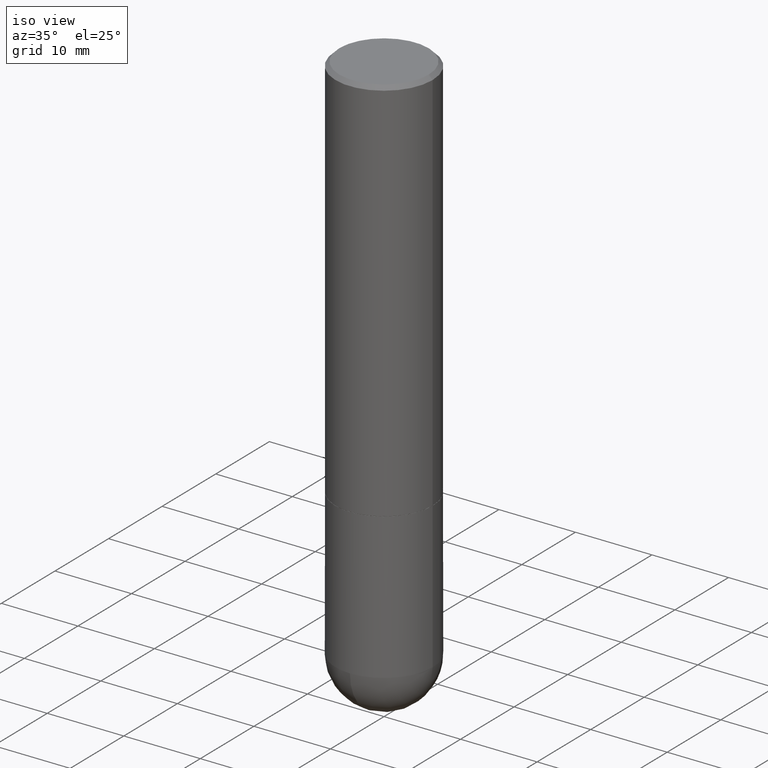
[diagram: clean part render]
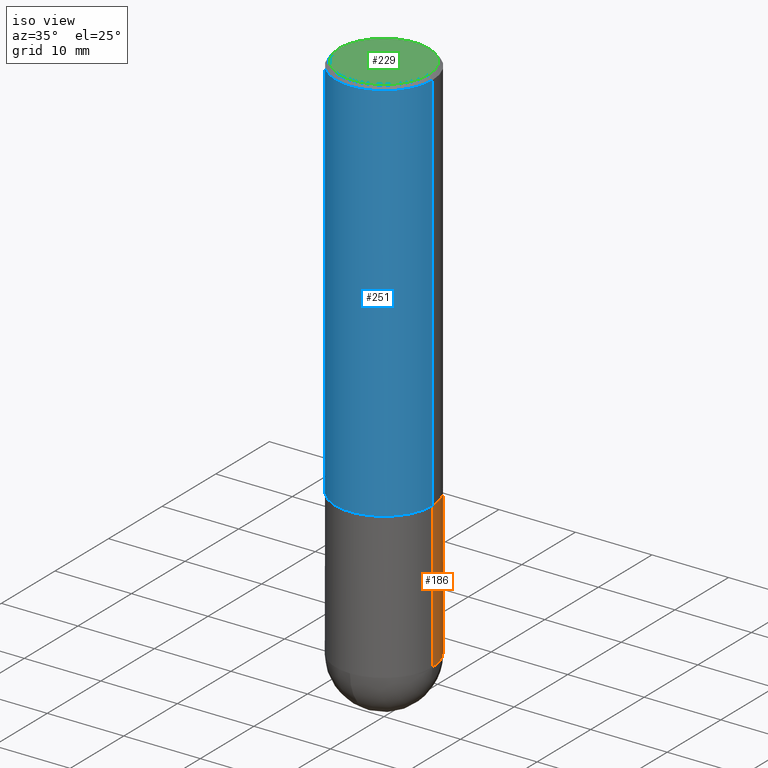
[diagram: same view with three faces highlighted in distinct colors, each labeled with its STEP entity id]
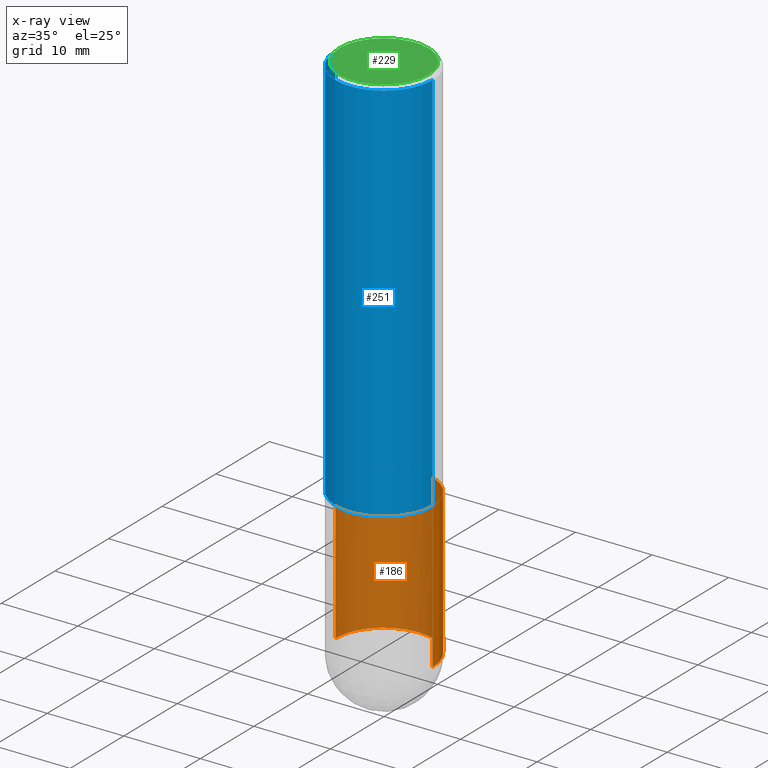
[diagram: x-ray of the same camera — body ghosted, the three highlighted faces saturated]
A machine part, iso view with three faces highlighted in distinct colors.
The next image is the same camera in x-ray (body ghosted, the three faces saturated) — at least one of them is partly hidden behind the body in this view.
Their STEP definitions:

[orange] entity #186 — the highlighted cylindrical surface (partial cylindrical patch) has radius 6.35 mm, axis along (-0, 0, 1).
#8 = CARTESIAN_POINT ( 'NONE',  ( -0.2500000000000000000, -6.515911340352222020E-15, -2.750000000000000000 ) ) ;
#17 = VERTEX_POINT ( 'NONE', #228 ) ;
#25 = CARTESIAN_POINT ( 'NONE',  ( 0.2500000000000000000, -8.728703347107858632E-15, -2.000000000000000444 ) ) ;
#27 = DIRECTION ( 'NONE',  ( -2.445468806185136877E-29, 3.491481338843145188E-15, 1.000000000000000000 ) ) ;
#36 = DIRECTION ( 'NONE',  ( 1.000000000000000000, -6.982962677686266711E-15, 4.876176775795935793E-29 ) ) ;
#42 = CIRCLE ( 'NONE', #253, 0.2500000000000000000 ) ;
#51 = VERTEX_POINT ( 'NONE', #159 ) ;
#56 = VERTEX_POINT ( 'NONE', #25 ) ;
#61 = VECTOR ( 'NONE', #196, 39.37007874015748143 ) ;
#76 = FACE_OUTER_BOUND ( 'NONE', #86, .T. ) ;
#86 = EDGE_LOOP ( 'NONE', ( #237, #243, #345, #335, #400 ) ) ;
#88 = CIRCLE ( 'NONE', #402, 0.2500000000000000000 ) ;
#106 = CARTESIAN_POINT ( 'NONE',  ( 0.000000000000000000, 0.000000000000000000, 0.000000000000000000 ) ) ;
#125 = EDGE_CURVE ( 'NONE', #362, #56, #127, .T. ) ;
#127 = LINE ( 'NONE', #312, #198 ) ;
#136 = EDGE_CURVE ( 'NONE', #407, #51, #154, .T. ) ;
#145 = CYLINDRICAL_SURFACE ( 'NONE', #327, 0.2500000000000000000 ) ;
#154 = LINE ( 'NONE', #235, #61 ) ;
#158 = CARTESIAN_POINT ( 'NONE',  ( 4.890937612370273754E-29, -6.982962677686291954E-15, -2.000000000000000444 ) ) ;
#159 = CARTESIAN_POINT ( 'NONE',  ( -0.2500000000000000000, -6.515911340352220442E-15, -2.000000000000000444 ) ) ;
#175 = AXIS2_PLACEMENT_3D ( 'NONE', #257, #320, #200 ) ;
#186 = ADVANCED_FACE ( 'NONE', ( #76 ), #145, .T. ) ;
#196 = DIRECTION ( 'NONE',  ( -2.445468806185136877E-29, 3.491481338843145188E-15, 1.000000000000000000 ) ) ;
#198 = VECTOR ( 'NONE', #27, 39.37007874015748143 ) ;
#200 = DIRECTION ( 'NONE',  ( 1.000000000000000000, -6.982962677686262766E-15, 0.000000000000000000 ) ) ;
#228 = CARTESIAN_POINT ( 'NONE',  ( 1.745740669421632745E-15, 0.2499999999999902300, -2.750000000000000888 ) ) ;
#230 = DIRECTION ( 'NONE',  ( 1.000000000000000000, -6.982962677686262766E-15, 0.000000000000000000 ) ) ;
#235 = CARTESIAN_POINT ( 'NONE',  ( -0.2500000000000000000, 1.776356839400250465E-15, -1.229733772563726445E-29 ) ) ;
#237 = ORIENTED_EDGE ( 'NONE', *, *, #319, .T. ) ;
#243 = ORIENTED_EDGE ( 'NONE', *, *, #136, .T. ) ;
#252 = DIRECTION ( 'NONE',  ( -2.445468806185136597E-29, 3.491481338843145583E-15, 1.000000000000000000 ) ) ;
#253 = AXIS2_PLACEMENT_3D ( 'NONE', #381, #315, #230 ) ;
#257 = CARTESIAN_POINT ( 'NONE',  ( 6.725039217009124520E-29, -9.601573681818649859E-15, -2.750000000000000000 ) ) ;
#272 = EDGE_CURVE ( 'NONE', #362, #17, #303, .T. ) ;
#293 = CARTESIAN_POINT ( 'NONE',  ( 0.2500000000000000000, -1.003800884917403995E-14, -2.750000000000000000 ) ) ;
#303 = CIRCLE ( 'NONE', #175, 0.2500000000000000000 ) ;
#306 = EDGE_CURVE ( 'NONE', #56, #51, #88, .T. ) ;
#312 = CARTESIAN_POINT ( 'NONE',  ( 0.2500000000000000000, -1.745740669421566678E-15, 1.219044193948983948E-29 ) ) ;
#315 = DIRECTION ( 'NONE',  ( -2.445468806185136597E-29, 3.491481338843145583E-15, 1.000000000000000000 ) ) ;
#318 = DIRECTION ( 'NONE',  ( -2.445468806185136597E-29, 3.491481338843145583E-15, 1.000000000000000000 ) ) ;
#319 = EDGE_CURVE ( 'NONE', #17, #407, #42, .T. ) ;
#320 = DIRECTION ( 'NONE',  ( -2.445468806185136597E-29, 3.491481338843145583E-15, 1.000000000000000000 ) ) ;
#327 = AXIS2_PLACEMENT_3D ( 'NONE', #106, #318, #36 ) ;
#335 = ORIENTED_EDGE ( 'NONE', *, *, #125, .F. ) ;
#345 = ORIENTED_EDGE ( 'NONE', *, *, #306, .F. ) ;
#362 = VERTEX_POINT ( 'NONE', #293 ) ;
#381 = CARTESIAN_POINT ( 'NONE',  ( 6.725039217009124520E-29, -9.601573681818649859E-15, -2.750000000000000000 ) ) ;
#400 = ORIENTED_EDGE ( 'NONE', *, *, #272, .T. ) ;
#402 = AXIS2_PLACEMENT_3D ( 'NONE', #158, #252, #411 ) ;
#407 = VERTEX_POINT ( 'NONE', #8 ) ;
#411 = DIRECTION ( 'NONE',  ( 1.000000000000000000, -6.982962677686266711E-15, 0.000000000000000000 ) ) ;

[blue] entity #251 — the highlighted cylindrical surface (partial cylindrical patch) has radius 6.35 mm, axis along (-0, 0, 1).
#4 = CARTESIAN_POINT ( 'NONE',  ( -0.2500000000000002220, -1.748293572161901516E-15, -1.999000000000000110 ) ) ;
#6 = CARTESIAN_POINT ( 'NONE',  ( 0.2500000000000001110, -1.745740669421567664E-15, 1.219044193948984649E-29 ) ) ;
#18 = CARTESIAN_POINT ( 'NONE',  ( 0.2500000000000002776, -8.725211865769017202E-15, -1.999000000000000110 ) ) ;
#44 = AXIS2_PLACEMENT_3D ( 'NONE', #72, #197, #164 ) ;
#47 = CARTESIAN_POINT ( 'NONE',  ( -0.2500000000000001110, 1.776356839400251254E-15, -1.229733772563727146E-29 ) ) ;
#53 = CARTESIAN_POINT ( 'NONE',  ( 0.2500000000000000000, -1.784954126219746189E-15, -0.02000000000000005593 ) ) ;
#72 = CARTESIAN_POINT ( 'NONE',  ( 4.890937612370287172E-31, -6.982962677686310098E-17, -0.02000000000000005593 ) ) ;
#73 = AXIS2_PLACEMENT_3D ( 'NONE', #212, #171, #358 ) ;
#108 = CARTESIAN_POINT ( 'NONE',  ( 0.000000000000000000, 0.000000000000000000, 0.000000000000000000 ) ) ;
#130 = LINE ( 'NONE', #6, #162 ) ;
#135 = DIRECTION ( 'NONE',  ( -2.445468806185136597E-29, 3.491481338843145583E-15, 1.000000000000000000 ) ) ;
#140 = VERTEX_POINT ( 'NONE', #262 ) ;
#143 = VERTEX_POINT ( 'NONE', #18 ) ;
#160 = EDGE_CURVE ( 'NONE', #341, #140, #390, .T. ) ;
#162 = VECTOR ( 'NONE', #256, 39.37007874015748143 ) ;
#164 = DIRECTION ( 'NONE',  ( 1.000000000000000000, -6.982962677686266711E-15, 0.000000000000000000 ) ) ;
#167 = CIRCLE ( 'NONE', #73, 0.2500000000000002776 ) ;
#169 = DIRECTION ( 'NONE',  ( 1.000000000000000000, -6.982962677686267499E-15, 4.876176775795936353E-29 ) ) ;
#171 = DIRECTION ( 'NONE',  ( -2.445468806185136597E-29, 3.491481338843145583E-15, 1.000000000000000000 ) ) ;
#173 = ORIENTED_EDGE ( 'NONE', *, *, #342, .T. ) ;
#179 = EDGE_LOOP ( 'NONE', ( #309, #217, #173, #401 ) ) ;
#191 = VECTOR ( 'NONE', #209, 39.37007874015748143 ) ;
#197 = DIRECTION ( 'NONE',  ( -2.445468806185136597E-29, 3.491481338843145583E-15, 1.000000000000000000 ) ) ;
#201 = EDGE_CURVE ( 'NONE', #341, #143, #167, .T. ) ;
#206 = FACE_OUTER_BOUND ( 'NONE', #179, .T. ) ;
#209 = DIRECTION ( 'NONE',  ( -2.445468806185136877E-29, 3.491481338843145188E-15, 1.000000000000000000 ) ) ;
#211 = VERTEX_POINT ( 'NONE', #53 ) ;
#212 = CARTESIAN_POINT ( 'NONE',  ( 4.888492143564088712E-29, -6.979471196347448158E-15, -1.999000000000000110 ) ) ;
#217 = ORIENTED_EDGE ( 'NONE', *, *, #201, .T. ) ;
#251 = ADVANCED_FACE ( 'NONE', ( #206 ), #330, .T. ) ;
#256 = DIRECTION ( 'NONE',  ( -2.445468806185136877E-29, 3.491481338843145188E-15, 1.000000000000000000 ) ) ;
#262 = CARTESIAN_POINT ( 'NONE',  ( -0.2500000000000000000, 1.675911042644703577E-15, -0.02000000000000005593 ) ) ;
#267 = CIRCLE ( 'NONE', #44, 0.2500000000000000000 ) ;
#309 = ORIENTED_EDGE ( 'NONE', *, *, #160, .F. ) ;
#330 = CYLINDRICAL_SURFACE ( 'NONE', #371, 0.2500000000000001110 ) ;
#341 = VERTEX_POINT ( 'NONE', #4 ) ;
#342 = EDGE_CURVE ( 'NONE', #143, #211, #130, .T. ) ;
#354 = EDGE_CURVE ( 'NONE', #140, #211, #267, .T. ) ;
#358 = DIRECTION ( 'NONE',  ( 1.000000000000000000, -6.982962677686266711E-15, 0.000000000000000000 ) ) ;
#371 = AXIS2_PLACEMENT_3D ( 'NONE', #108, #135, #169 ) ;
#390 = LINE ( 'NONE', #47, #191 ) ;
#401 = ORIENTED_EDGE ( 'NONE', *, *, #354, .F. ) ;

[green] entity #229 — the highlighted planar face has unit normal (0, -0, -1).
#9 = CIRCLE ( 'NONE', #295, 0.2300000000000001488 ) ;
#14 = PLANE ( 'NONE',  #284 ) ;
#50 = CARTESIAN_POINT ( 'NONE',  ( 3.340324525872703422E-45, -4.769098145217431040E-31, -1.365923996832131609E-16 ) ) ;
#62 = VERTEX_POINT ( 'NONE', #370 ) ;
#78 = DIRECTION ( 'NONE',  ( -1.000000000000000000, 6.982962677686265922E-15, -4.876176775795935793E-29 ) ) ;
#85 = ORIENTED_EDGE ( 'NONE', *, *, #263, .T. ) ;
#87 = VERTEX_POINT ( 'NONE', #157 ) ;
#100 = DIRECTION ( 'NONE',  ( -2.445468806185136597E-29, 3.491481338843145583E-15, 1.000000000000000000 ) ) ;
#157 = CARTESIAN_POINT ( 'NONE',  ( 0.2300000000000001488, -1.681434332853599997E-15, -1.365923996832016731E-16 ) ) ;
#168 = AXIS2_PLACEMENT_3D ( 'NONE', #384, #100, #232 ) ;
#172 = DIRECTION ( 'NONE',  ( 1.000000000000000000, -6.982962677686265922E-15, 4.879110437680772635E-29 ) ) ;
#192 = ORIENTED_EDGE ( 'NONE', *, *, #352, .T. ) ;
#221 = CIRCLE ( 'NONE', #168, 0.2300000000000001488 ) ;
#229 = ADVANCED_FACE ( 'NONE', ( #292 ), #14, .F. ) ;
#232 = DIRECTION ( 'NONE',  ( 1.000000000000000000, -6.982962677686265922E-15, 4.879110437680772635E-29 ) ) ;
#234 = CARTESIAN_POINT ( 'NONE',  ( 1.606081415867842251E-15, 0.2300000000000001488, -8.713369077755306147E-16 ) ) ;
#260 = DIRECTION ( 'NONE',  ( -2.445468806185136597E-29, 3.491481338843145583E-15, 1.000000000000000000 ) ) ;
#263 = EDGE_CURVE ( 'NONE', #87, #62, #9, .T. ) ;
#284 = AXIS2_PLACEMENT_3D ( 'NONE', #234, #326, #78 ) ;
#292 = FACE_OUTER_BOUND ( 'NONE', #367, .T. ) ;
#295 = AXIS2_PLACEMENT_3D ( 'NONE', #50, #260, #172 ) ;
#326 = DIRECTION ( 'NONE',  ( 2.438088387897960049E-29, -3.491481338843145188E-15, -1.000000000000000000 ) ) ;
#352 = EDGE_CURVE ( 'NONE', #62, #87, #221, .T. ) ;
#367 = EDGE_LOOP ( 'NONE', ( #192, #85 ) ) ;
#370 = CARTESIAN_POINT ( 'NONE',  ( -0.2300000000000001488, 1.640996229256272716E-15, -1.365923996832245008E-16 ) ) ;
#384 = CARTESIAN_POINT ( 'NONE',  ( 3.340324525872703422E-45, -4.769098145217431040E-31, -1.365923996832131609E-16 ) ) ;